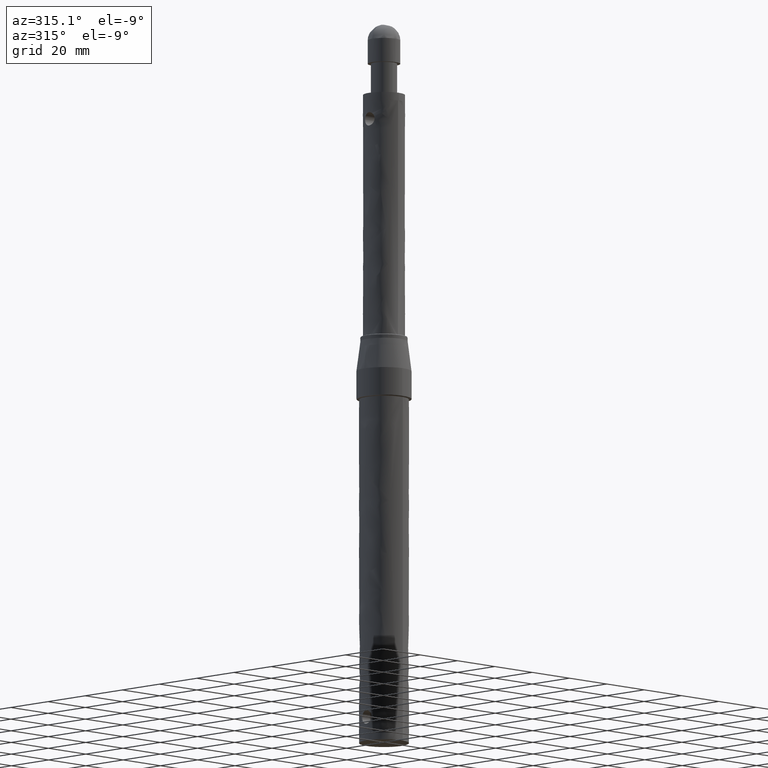
[diagram: clean part render]
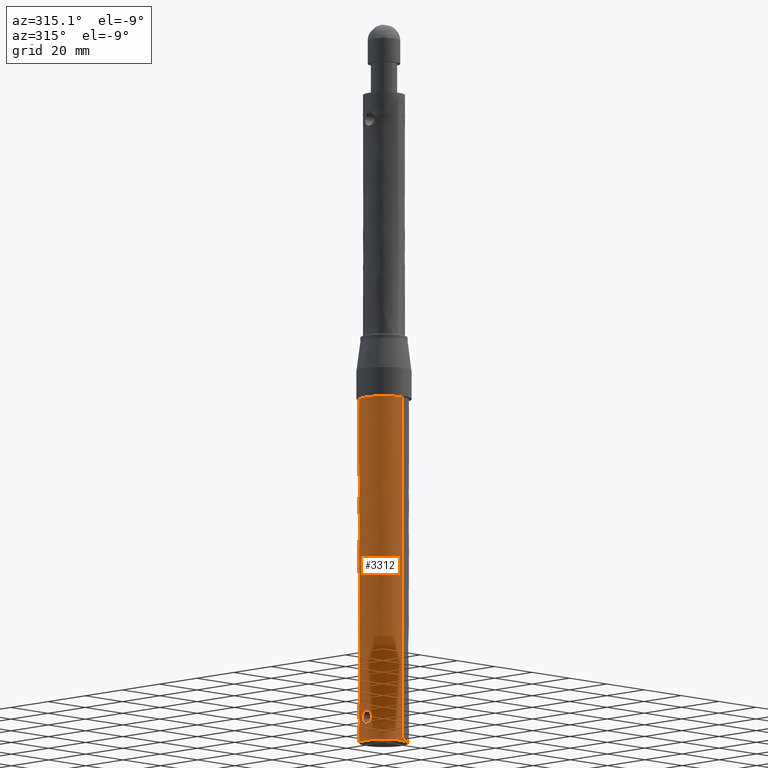
[diagram: same view with one face highlighted and labeled with its STEP entity id]
A machine part, auxiliary view. The second image highlights one B-rep face of the part: STEP entity #3312.
In plain terms, the highlighted face is a freeform B-spline surface patch.
Its self-contained STEP definition (entity closure, byte-faithful):
#2817=CARTESIAN_POINT('',(-9.500000000000000,0.0,-156.0));
#2818=VERTEX_POINT('',#2817);
#2819=CARTESIAN_POINT('',(-0.579961125995799,9.482280584982373,-156.0));
#2820=VERTEX_POINT('',#2819);
#2821=CARTESIAN_POINT('',(-9.500000000000000,0.0,-156.0));
#2822=CARTESIAN_POINT('',(-9.500000000000000,8.936707635212571,-156.0));
#2823=CARTESIAN_POINT('',(-0.579961125995799,9.482280584982377,-155.999999999999970));
#2831=(BOUNDED_CURVE()B_SPLINE_CURVE(2,(#2821,#2822,#2823),.UNSPECIFIED.,.F.,.U.)B_SPLINE_CURVE_WITH_KNOTS((3,3),(0.0,0.239332962234423),.UNSPECIFIED.)CURVE()GEOMETRIC_REPRESENTATION_ITEM()RATIONAL_B_SPLINE_CURVE((1.0,0.719603993292006,0.976072041657030))REPRESENTATION_ITEM(''));
#2832=EDGE_CURVE('',#2818,#2820,#2831,.T.);
#2851=CARTESIAN_POINT('',(0.579961125995800,-9.482280584982373,-156.0));
#2852=VERTEX_POINT('',#2851);
#2866=CARTESIAN_POINT('',(0.579961125995796,-9.482280584982377,-156.000000000000030));
#2867=CARTESIAN_POINT('',(0.290251251544504,-9.500000000000000,-155.999999999999970));
#2868=CARTESIAN_POINT('',(0.0,-9.500000000000000,-156.0));
#2869=CARTESIAN_POINT('',(-9.500000000000000,-9.500000000000000,-155.999999999999970));
#2870=CARTESIAN_POINT('',(-9.500000000000000,0.0,-156.0));
#2878=(BOUNDED_CURVE()B_SPLINE_CURVE(2,(#2866,#2867,#2868,#2869,#2870),.UNSPECIFIED.,.F.,.U.)B_SPLINE_CURVE_WITH_KNOTS((3,2,3),(0.739332962234423,0.750000000000000,1.0),.UNSPECIFIED.)CURVE()GEOMETRIC_REPRESENTATION_ITEM()RATIONAL_B_SPLINE_CURVE((0.976072041657031,0.987502787894542,1.0,0.707106781186548,1.0))REPRESENTATION_ITEM(''));
#2879=EDGE_CURVE('',#2852,#2818,#2878,.T.);
#2908=CARTESIAN_POINT('',(-9.151393075626473,2.549903024251533,-146.977747333408700));
#2909=VERTEX_POINT('',#2908);
#2910=CARTESIAN_POINT('',(-9.499999945637139,0.001087199986066,-144.450000150858610));
#2911=VERTEX_POINT('',#2910);
#2912=CARTESIAN_POINT('',(-9.151393075626473,2.549903024251533,-146.977747333408700));
#2913=CARTESIAN_POINT('',(-9.151577088295642,2.549244033999370,-146.902077797311110));
#2914=CARTESIAN_POINT('',(-9.152700265782341,2.545218633929663,-146.826160597945290));
#2915=CARTESIAN_POINT('',(-9.157079830072116,2.529419400996747,-146.665792688586810));
#2916=CARTESIAN_POINT('',(-9.160509936251557,2.517011024214980,-146.582707613113510));
#2917=CARTESIAN_POINT('',(-9.173896000497573,2.467950776888772,-146.336953692585100));
#2918=CARTESIAN_POINT('',(-9.186953253415750,2.419563475838403,-146.177614880526390));
#2919=CARTESIAN_POINT('',(-9.207505624357173,2.339255142136832,-145.984056339488690));
#2920=CARTESIAN_POINT('',(-9.211840271072298,2.322141592838034,-145.945524762944900));
#2921=CARTESIAN_POINT('',(-9.220826567571784,2.286197757488796,-145.869708252271890));
#2922=CARTESIAN_POINT('',(-9.225479279502851,2.267364517309061,-145.832398287612990));
#2923=CARTESIAN_POINT('',(-9.239854776708343,2.208330608583822,-145.722220837275700));
#2924=CARTESIAN_POINT('',(-9.260133773600819,2.122873705753743,-145.579982016919900));
#2925=CARTESIAN_POINT('',(-9.282014574789463,2.024132440826272,-145.446841315111810));
#2926=CARTESIAN_POINT('',(-9.298797292003021,1.945018099670832,-145.350414321780510));
#2927=CARTESIAN_POINT('',(-9.304453559850829,1.917801998698465,-145.318844473327490));
#2928=CARTESIAN_POINT('',(-9.315851480933374,1.861647591981959,-145.256865847887100));
#2929=CARTESIAN_POINT('',(-9.321591277356637,1.832713225839459,-145.226472135089890));
#2930=CARTESIAN_POINT('',(-9.350093912214971,1.685281770713760,-145.079023549345490));
#2931=CARTESIAN_POINT('',(-9.372508318593022,1.557401719604584,-144.974042700071290));
#2932=CARTESIAN_POINT('',(-9.403739280583620,1.350755545827572,-144.835551997425990));
#2933=CARTESIAN_POINT('',(-9.413752509622308,1.279384412026764,-144.792575888544490));
#2934=CARTESIAN_POINT('',(-9.427945584425997,1.168431511828163,-144.733057308670310));
#2935=CARTESIAN_POINT('',(-9.432527124239291,1.130875526860140,-144.714093108019110));
#2936=CARTESIAN_POINT('',(-9.441282319487922,1.055289335244657,-144.678230371967000));
#2937=CARTESIAN_POINT('',(-9.445468173870530,1.017165321325272,-144.661280566721300));
#2938=CARTESIAN_POINT('',(-9.465380948211143,0.824908144831355,-144.581370318445610));
#2939=CARTESIAN_POINT('',(-9.478061365762002,0.665909845308055,-144.532783208106990));
#2940=CARTESIAN_POINT('',(-9.491094500512421,0.419399538723099,-144.483330041772690));
#2941=CARTESIAN_POINT('',(-9.494446123849379,0.335406625414164,-144.470756798522590));
#2942=CARTESIAN_POINT('',(-9.498881791325198,0.168075940438839,-144.454156473916810));
#2943=CARTESIAN_POINT('',(-9.499990404622063,0.084525406627272,-144.450035644167000));
#2944=CARTESIAN_POINT('',(-9.499999945637139,0.001087199986066,-144.450000150858610));
#2945=B_SPLINE_CURVE_WITH_KNOTS('',3,(#2912,#2913,#2914,#2915,#2916,#2917,#2918,#2919,#2920,#2921,#2922,#2923,#2924,#2925,#2926,#2927,#2928,#2929,#2930,#2931,#2932,#2933,#2934,#2935,#2936,#2937,#2938,#2939,#2940,#2941,#2942,#2943,#2944),.UNSPECIFIED.,.F.,.U.,(4,2,2,2,2,2,1,2,2,2,2,2,2,2,2,2,4),(0.251488752864371,0.265625000000041,0.281250000000041,0.312500000000042,0.320312500000040,0.328125000000038,0.343750000000039,0.359375000000039,0.367187500000039,0.375000000000039,0.406250000000040,0.421875000000041,0.429687500000040,0.437500000000039,0.468750000000033,0.484375000000030,0.500000000000027),.UNSPECIFIED.);
#2946=EDGE_CURVE('',#2909,#2911,#2945,.T.);
#3031=CARTESIAN_POINT('',(-9.151393082437107,-2.549903377957102,-147.022252669360310));
#3032=VERTEX_POINT('',#3031);
#3038=CARTESIAN_POINT('',(-9.499999945637139,0.001087199986066,-144.450000150858610));
#3039=CARTESIAN_POINT('',(-9.500009486651498,-0.082351001009300,-144.449964657501400));
#3040=CARTESIAN_POINT('',(-9.498919955384039,-0.165676874352867,-144.454014500581510));
#3041=CARTESIAN_POINT('',(-9.494558277817184,-0.332102752576592,-144.470336240509600));
#3042=CARTESIAN_POINT('',(-9.491278962834279,-0.415336878895995,-144.482634367217200));
#3043=CARTESIAN_POINT('',(-9.478229009748670,-0.663851773999194,-144.532138846704900));
#3044=CARTESIAN_POINT('',(-9.465514150896713,-0.823348583159300,-144.580853936403800));
#3045=CARTESIAN_POINT('',(-9.441685017989698,-1.053825918300338,-144.676453493695900));
#3046=CARTESIAN_POINT('',(-9.432947441531486,-1.129179498099572,-144.712103511553290));
#3047=CARTESIAN_POINT('',(-9.418803797255988,-1.239968018717105,-144.771383118959790));
#3048=CARTESIAN_POINT('',(-9.413905036740159,-1.276598825314604,-144.792162338449800));
#3049=CARTESIAN_POINT('',(-9.403892807155295,-1.348374066398236,-144.835250816429410));
#3050=CARTESIAN_POINT('',(-9.398770752067522,-1.383593102432018,-144.857594944344700));
#3051=CARTESIAN_POINT('',(-9.372678997269414,-1.556418807612483,-144.973244994629790));
#3052=CARTESIAN_POINT('',(-9.350264548649832,-1.684314141992891,-145.078219413100300));
#3053=CARTESIAN_POINT('',(-9.321849817347982,-1.831396386260048,-145.225115533923400));
#3054=CARTESIAN_POINT('',(-9.316147228393445,-1.860167435571755,-145.255286164024200));
#3055=CARTESIAN_POINT('',(-9.304742896373597,-1.916398088088569,-145.317244059279400));
#3056=CARTESIAN_POINT('',(-9.299049183706133,-1.943814668003881,-145.348993554452510));
#3057=CARTESIAN_POINT('',(-9.282212993501208,-2.023227530632259,-145.445649884373100));
#3058=CARTESIAN_POINT('',(-9.271256124152046,-2.072689581148669,-145.512279887179090));
#3059=CARTESIAN_POINT('',(-9.239635928998466,-2.210895783119560,-145.718650658792800));
#3060=CARTESIAN_POINT('',(-9.220213383391359,-2.289566243015095,-145.864805033568100));
#3061=CARTESIAN_POINT('',(-9.195416944960376,-2.386507473620415,-146.097696841182510));
#3062=CARTESIAN_POINT('',(-9.187973539285059,-2.414906494319100,-146.176786178328710));
#3063=CARTESIAN_POINT('',(-9.175053747661069,-2.463538051267546,-146.336347599076900));
#3064=CARTESIAN_POINT('',(-9.164050271954102,-2.504198543033889,-146.497757946313810));
#3065=CARTESIAN_POINT('',(-9.157193504216833,-2.529007696143815,-146.662864676645400));
#3066=CARTESIAN_POINT('',(-9.152566680354202,-2.545701447825685,-146.829870079877910));
#3067=CARTESIAN_POINT('',(-9.151376553619265,-2.549961726575019,-146.914775969485990));
#3068=CARTESIAN_POINT('',(-9.151365118133974,-2.550002757450056,-147.006662869869190));
#3069=CARTESIAN_POINT('',(-9.151374127979377,-2.549970782430493,-147.014460060587990));
#3070=CARTESIAN_POINT('',(-9.151393082437107,-2.549903377957102,-147.022252669360310));
#3071=B_SPLINE_CURVE_WITH_KNOTS('',3,(#3038,#3039,#3040,#3041,#3042,#3043,#3044,#3045,#3046,#3047,#3048,#3049,#3050,#3051,#3052,#3053,#3054,#3055,#3056,#3057,#3058,#3059,#3060,#3061,#3062,#3063,#3064,#3065,#3066,#3067,#3068,#3069,#3070),.UNSPECIFIED.,.F.,.U.,(4,2,2,2,2,2,2,2,2,2,2,2,2,1,2,2,4),(0.500000000000027,0.515625000000024,0.531250000000022,0.562500000000017,0.578125000000014,0.585937500000014,0.593750000000014,0.625000000000017,0.632812500000015,0.640625000000013,0.656250000000009,0.687500000000001,0.703125000000000,0.718749999999998,0.734374999999996,0.749999999999995,0.751449754333768),.UNSPECIFIED.);
#3072=EDGE_CURVE('',#2911,#3032,#3071,.T.);
#3095=CARTESIAN_POINT('',(-9.500000000000002,2.110128E-014,-149.550000000000010));
#3096=VERTEX_POINT('',#3095);
#3097=CARTESIAN_POINT('',(-9.500000000000002,2.110128E-014,-149.550000000000010));
#3098=CARTESIAN_POINT('',(-9.499999999999913,0.169298093772692,-149.550000000034200));
#3099=CARTESIAN_POINT('',(-9.495481155706957,0.335616211573461,-149.533308714705300));
#3100=CARTESIAN_POINT('',(-9.482580050825733,0.580840527610969,-149.484365530128290));
#3101=CARTESIAN_POINT('',(-9.477257968510749,0.661868054156088,-149.464036482310090));
#3102=CARTESIAN_POINT('',(-9.467819001406321,0.782320465049264,-149.427392827751110));
#3103=CARTESIAN_POINT('',(-9.464419573737242,0.822400273536356,-149.414109987059590));
#3104=CARTESIAN_POINT('',(-9.457205985161048,0.901573637476108,-149.385672695015300));
#3105=CARTESIAN_POINT('',(-9.453396213064938,0.940639484261891,-149.370536043438700));
#3106=CARTESIAN_POINT('',(-9.433418517512001,1.133427278682476,-149.290358850312200));
#3107=CARTESIAN_POINT('',(-9.414467179470808,1.279598011482822,-149.211971324804810));
#3108=CARTESIAN_POINT('',(-9.388372325734640,1.452476388345878,-149.096316467629490));
#3109=CARTESIAN_POINT('',(-9.383033027954275,1.486555781649210,-149.072293584075600));
#3110=CARTESIAN_POINT('',(-9.372147219806816,1.553709551733112,-149.022433040847400));
#3111=CARTESIAN_POINT('',(-9.366594236399209,1.586815552941904,-148.996561810716200));
#3112=CARTESIAN_POINT('',(-9.349859148157627,1.683573318076069,-148.917042509651590));
#3113=CARTESIAN_POINT('',(-9.338545590320418,1.745026050152545,-148.861244413528000));
#3114=CARTESIAN_POINT('',(-9.304612386990481,1.920517510143794,-148.685674869055790));
#3115=CARTESIAN_POINT('',(-9.281990949724646,2.025780115641308,-148.557813392648800));
#3116=CARTESIAN_POINT('',(-9.255333479085866,2.142282239206943,-148.383792152689300));
#3117=CARTESIAN_POINT('',(-9.250092631938589,2.164780301303908,-148.348321035207190));
#3118=CARTESIAN_POINT('',(-9.239927112764468,2.207766831984690,-148.276718043931510));
#3119=CARTESIAN_POINT('',(-9.234988268292048,2.228317567336061,-148.240495056191690));
#3120=CARTESIAN_POINT('',(-9.220651817291600,2.287184105810283,-148.130574458372000));
#3121=CARTESIAN_POINT('',(-9.202817002893658,2.358257840960337,-147.980681743007810));
#3122=CARTESIAN_POINT('',(-9.188052486014749,2.414607384495379,-147.824115792236910));
#3123=CARTESIAN_POINT('',(-9.175085010308536,2.463422888360238,-147.664110908981600));
#3124=CARTESIAN_POINT('',(-9.169478912065937,2.484139068009755,-147.581901382007800));
#3125=CARTESIAN_POINT('',(-9.156009490798651,2.533506153897066,-147.334772445271000));
#3126=CARTESIAN_POINT('',(-9.151396240386450,2.549891423676090,-147.168808578881600));
#3127=CARTESIAN_POINT('',(-9.151364733621314,2.550004490165375,-146.993682796653500));
#3128=CARTESIAN_POINT('',(-9.151373696410365,2.549972425903119,-146.985716438467510));
#3129=CARTESIAN_POINT('',(-9.151393075626473,2.549903024251533,-146.977747333408700));
#3130=B_SPLINE_CURVE_WITH_KNOTS('',3,(#3097,#3098,#3099,#3100,#3101,#3102,#3103,#3104,#3105,#3106,#3107,#3108,#3109,#3110,#3111,#3112,#3113,#3114,#3115,#3116,#3117,#3118,#3119,#3120,#3121,#3122,#3123,#3124,#3125,#3126,#3127,#3128,#3129),.UNSPECIFIED.,.F.,.U.,(4,2,2,2,2,2,2,2,2,2,2,2,1,2,2,2,4),(0.0,0.031249999999996,0.046874999999994,0.054687499999993,0.062499999999991,0.093749999999991,0.101562499999993,0.109374999999995,0.124999999999998,0.156250000000006,0.164062500000011,0.171875000000017,0.187500000000022,0.203125000000028,0.218750000000034,0.250000000000040,0.251488752864371),.UNSPECIFIED.);
#3131=EDGE_CURVE('',#3096,#2909,#3130,.T.);
#3133=CARTESIAN_POINT('',(-9.151393082437107,-2.549903377957102,-147.022252669360310));
#3134=CARTESIAN_POINT('',(-9.151782698448201,-2.548517883155705,-147.182432674175800));
#3135=CARTESIAN_POINT('',(-9.156374146755114,-2.532162611578845,-147.340676698975390));
#3136=CARTESIAN_POINT('',(-9.167076110008019,-2.492947007491451,-147.538014445485290));
#3137=CARTESIAN_POINT('',(-9.169566060518333,-2.483780952248476,-147.578871883290500));
#3138=CARTESIAN_POINT('',(-9.175068006779645,-2.463379120554014,-147.660321018590510));
#3139=CARTESIAN_POINT('',(-9.178088505220357,-2.452111325087877,-147.701015173080010));
#3140=CARTESIAN_POINT('',(-9.187850677101492,-2.415375787797795,-147.821921364648400));
#3141=CARTESIAN_POINT('',(-9.195257893420440,-2.387114324670198,-147.900616061871400));
#3142=CARTESIAN_POINT('',(-9.219749001015234,-2.291410936924180,-148.131210817724910));
#3143=CARTESIAN_POINT('',(-9.239103435353108,-2.213158453102651,-148.277673275418610));
#3144=CARTESIAN_POINT('',(-9.265721154267464,-2.096897527683770,-148.451644170030900));
#3145=CARTESIAN_POINT('',(-9.271170999062703,-2.072688231875112,-148.486003415574000));
#3146=CARTESIAN_POINT('',(-9.282157432792447,-2.022919095456943,-148.553074713050390));
#3147=CARTESIAN_POINT('',(-9.287707864070420,-1.997299848525605,-148.585880170900710));
#3148=CARTESIAN_POINT('',(-9.304468554354539,-1.918271243163996,-148.682150199289590));
#3149=CARTESIAN_POINT('',(-9.327107274779776,-1.807121662984496,-148.804797401231890));
#3150=CARTESIAN_POINT('',(-9.349690990894843,-1.684496745687116,-148.916218377826790));
#3151=CARTESIAN_POINT('',(-9.371932597324470,-1.555998209106560,-149.021952485947790));
#3152=CARTESIAN_POINT('',(-9.382937042339735,-1.488425460504401,-149.072210204752910));
#3153=CARTESIAN_POINT('',(-9.414365167137067,-1.280391295581222,-149.211551918561100));
#3154=CARTESIAN_POINT('',(-9.433305395381559,-1.134276516011259,-149.289888633949000));
#3155=CARTESIAN_POINT('',(-9.457211682174446,-0.903938917431966,-149.385856788888190));
#3156=CARTESIAN_POINT('',(-9.464430348987214,-0.825285808895166,-149.414230211256890));
#3157=CARTESIAN_POINT('',(-9.477107328273801,-0.664059666473775,-149.463458746247910));
#3158=CARTESIAN_POINT('',(-9.482488820262686,-0.582380367351596,-149.484017988110200));
#3159=CARTESIAN_POINT('',(-9.495478904671863,-0.336043308812183,-149.533303020378300));
#3160=CARTESIAN_POINT('',(-9.499999999998614,-0.169298081970473,-149.549999999863900));
#3161=CARTESIAN_POINT('',(-9.500000000000002,2.110128E-014,-149.550000000000010));
#3162=B_SPLINE_CURVE_WITH_KNOTS('',3,(#3133,#3134,#3135,#3136,#3137,#3138,#3139,#3140,#3141,#3142,#3143,#3144,#3145,#3146,#3147,#3148,#3149,#3150,#3151,#3152,#3153,#3154,#3155,#3156,#3157,#3158,#3159,#3160,#3161),.UNSPECIFIED.,.F.,.U.,(4,2,2,2,2,2,2,2,1,2,2,2,2,2,4),(0.751449754333769,0.781249999999991,0.789062499999989,0.796874999999987,0.812499999999983,0.843749999999979,0.851562499999981,0.859374999999982,0.874999999999984,0.890624999999987,0.906249999999989,0.937499999999992,0.953124999999994,0.968749999999996,1.0),.UNSPECIFIED.);
#3163=EDGE_CURVE('',#3032,#3096,#3162,.T.);
#3240=CARTESIAN_POINT('',(-0.579961125581140,9.482280585007734,-159.300000000000010));
#3241=CARTESIAN_POINT('',(-10.062241710588875,8.902319459426593,-159.300000000000100));
#3242=CARTESIAN_POINT('',(-9.482280585007734,-0.579961125581140,-159.300000000000010));
#3243=CARTESIAN_POINT('',(-8.902319459426593,-10.062241710588875,-159.300000000000100));
#3244=CARTESIAN_POINT('',(0.579961125581140,-9.482280585007734,-159.300000000000010));
#3245=CARTESIAN_POINT('',(-0.579961125581140,9.482280585007734,-20.617500000000010));
#3246=CARTESIAN_POINT('',(-10.062241710588875,8.902319459426593,-20.617500000000007));
#3247=CARTESIAN_POINT('',(-9.482280585007734,-0.579961125581140,-20.617500000000010));
#3248=CARTESIAN_POINT('',(-8.902319459426593,-10.062241710588875,-20.617500000000007));
#3249=CARTESIAN_POINT('',(0.579961125581140,-9.482280585007734,-20.617500000000010));
#3257=(BOUNDED_SURFACE()B_SPLINE_SURFACE(2,1,((#3240,#3245),(#3241,#3246),(#3242,#3247),(#3243,#3248),(#3244,#3249)),.UNSPECIFIED.,.F.,.F.,.U.)B_SPLINE_SURFACE_WITH_KNOTS((3,2,3),(2,2),(0.0,15.740115370177611,31.480230740355221),(0.0,138.682500000000090),.UNSPECIFIED.)GEOMETRIC_REPRESENTATION_ITEM()RATIONAL_B_SPLINE_SURFACE(((1.0,1.0),(0.707106781186548,0.707106781186548),(1.0,1.0),(0.707106781186548,0.707106781186548),(1.0,1.0)))REPRESENTATION_ITEM('')SURFACE());
#3258=ORIENTED_EDGE('',*,*,#2832,.F.);
#3259=ORIENTED_EDGE('',*,*,#2879,.F.);
#3260=CARTESIAN_POINT('',(0.579961125995799,-9.482280584982373,-24.0));
#3261=VERTEX_POINT('',#3260);
#3262=CARTESIAN_POINT('',(0.579961125995800,-9.482280584982373,-156.0));
#3263=CARTESIAN_POINT('',(0.579961125995799,-9.482280584982373,-24.0));
#3264=QUASI_UNIFORM_CURVE('',1,(#3262,#3263),.UNSPECIFIED.,.F.,.U.);
#3265=EDGE_CURVE('',#2852,#3261,#3264,.T.);
#3266=ORIENTED_EDGE('',*,*,#3265,.T.);
#3267=CARTESIAN_POINT('',(-9.500000000000000,0.0,-24.0));
#3268=VERTEX_POINT('',#3267);
#3269=CARTESIAN_POINT('',(0.579961125995799,-9.482280584982377,-24.0));
#3270=CARTESIAN_POINT('',(0.290251251544505,-9.500000000000000,-23.999999999999996));
#3271=CARTESIAN_POINT('',(0.0,-9.500000000000000,-24.0));
#3272=CARTESIAN_POINT('',(-9.500000000000000,-9.500000000000000,-23.999999999999996));
#3273=CARTESIAN_POINT('',(-9.500000000000000,0.0,-24.0));
#3281=(BOUNDED_CURVE()B_SPLINE_CURVE(2,(#3269,#3270,#3271,#3272,#3273),.UNSPECIFIED.,.F.,.U.)B_SPLINE_CURVE_WITH_KNOTS((3,2,3),(0.239332962234423,0.250000000000000,0.500000000000000),.UNSPECIFIED.)CURVE()GEOMETRIC_REPRESENTATION_ITEM()RATIONAL_B_SPLINE_CURVE((0.976072041657030,0.987502787894542,1.0,0.707106781186548,1.0))REPRESENTATION_ITEM(''));
#3282=EDGE_CURVE('',#3261,#3268,#3281,.T.);
#3283=ORIENTED_EDGE('',*,*,#3282,.T.);
#3284=CARTESIAN_POINT('',(-0.579961125995800,9.482280584982373,-24.0));
#3285=VERTEX_POINT('',#3284);
#3286=CARTESIAN_POINT('',(-9.500000000000000,0.0,-24.0));
#3287=CARTESIAN_POINT('',(-9.500000000000000,8.936707635212573,-24.000000000000004));
#3288=CARTESIAN_POINT('',(-0.579961125995796,9.482280584982377,-23.999999999999996));
#3296=(BOUNDED_CURVE()B_SPLINE_CURVE(2,(#3286,#3287,#3288),.UNSPECIFIED.,.F.,.U.)B_SPLINE_CURVE_WITH_KNOTS((3,3),(0.500000000000000,0.739332962234423),.UNSPECIFIED.)CURVE()GEOMETRIC_REPRESENTATION_ITEM()RATIONAL_B_SPLINE_CURVE((1.0,0.719603993292006,0.976072041657031))REPRESENTATION_ITEM(''));
#3297=EDGE_CURVE('',#3268,#3285,#3296,.T.);
#3298=ORIENTED_EDGE('',*,*,#3297,.T.);
#3299=CARTESIAN_POINT('',(-0.579961125995799,9.482280584982373,-156.0));
#3300=CARTESIAN_POINT('',(-0.579961125995800,9.482280584982373,-24.0));
#3301=QUASI_UNIFORM_CURVE('',1,(#3299,#3300),.UNSPECIFIED.,.F.,.U.);
#3302=EDGE_CURVE('',#2820,#3285,#3301,.T.);
#3303=ORIENTED_EDGE('',*,*,#3302,.F.);
#3304=EDGE_LOOP('',(#3258,#3259,#3266,#3283,#3298,#3303));
#3305=FACE_OUTER_BOUND('',#3304,.T.);
#3306=ORIENTED_EDGE('',*,*,#3072,.T.);
#3307=ORIENTED_EDGE('',*,*,#3163,.T.);
#3308=ORIENTED_EDGE('',*,*,#3131,.T.);
#3309=ORIENTED_EDGE('',*,*,#2946,.T.);
#3310=EDGE_LOOP('',(#3306,#3307,#3308,#3309));
#3311=FACE_BOUND('',#3310,.T.);
#3312=ADVANCED_FACE('',(#3305,#3311),#3257,.T.);